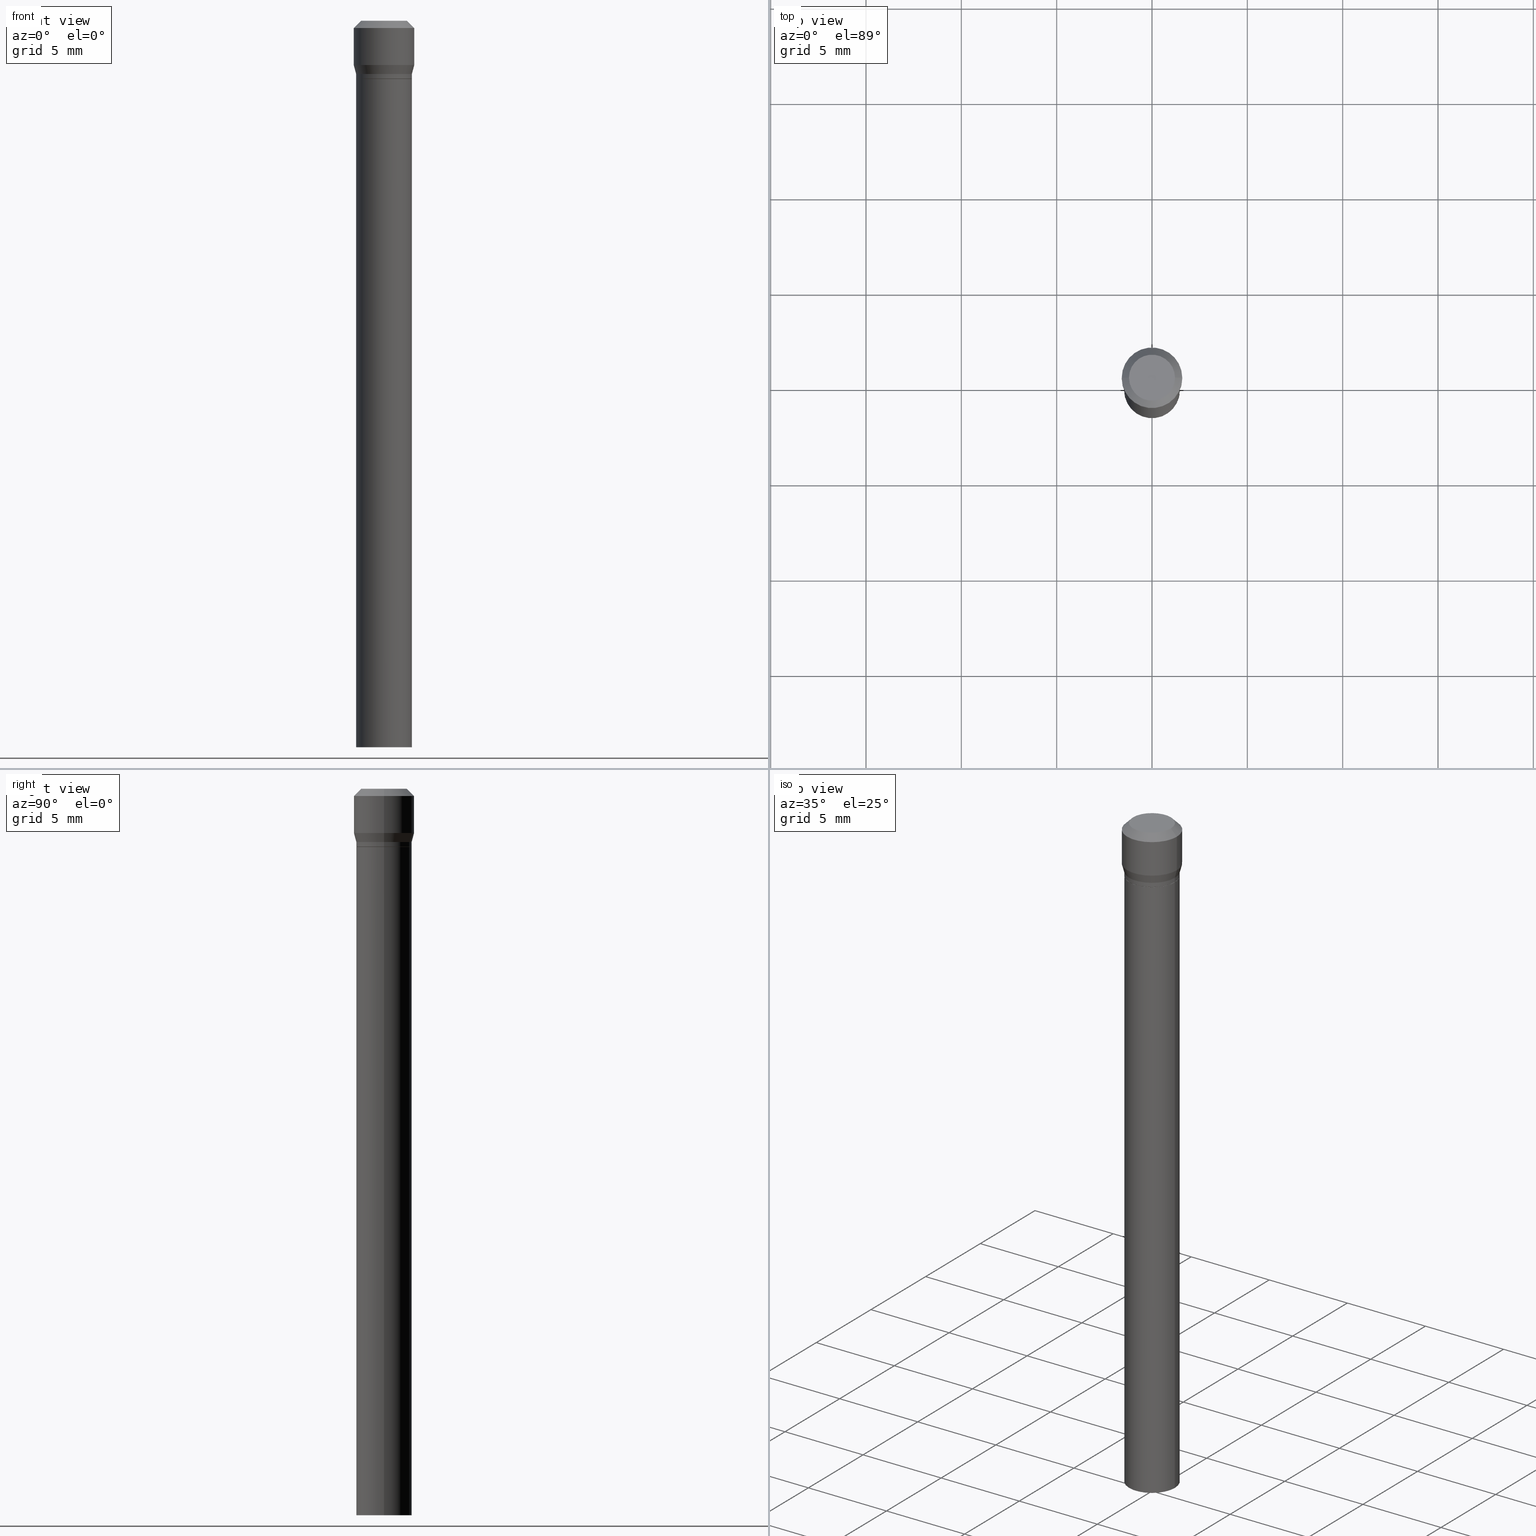
[diagram: canonical four-view strip — front | top / right | iso, engineering-drawing reading convention]
A machine part, canonical four-view strip (front | top / right | iso — engineering-drawing reading convention). The complete STEP part file that produces these views, byte-faithful:
ISO-10303-21;
HEADER;
FILE_DESCRIPTION (( 'STEP AP203' ),
    '1' );
FILE_NAME ('04264.STEP',
    '2024-03-14T17:35:19',
    ( '' ),
    ( '' ),
    'SwSTEP 2.0',
    'SolidWorks 2023',
    '' );
FILE_SCHEMA (( 'CONFIG_CONTROL_DESIGN' ));
ENDSEC;

DATA;
#1 = ORIENTED_EDGE ( 'NONE', *, *, #291, .T. ) ;
#2 = CARTESIAN_POINT ( 'NONE',  ( 0.05750000000000000250, -4.015203539669603161E-16, 2.803801646082662941E-30 ) ) ;
#3 = ADVANCED_FACE ( 'NONE', ( #105 ), #68, .T. ) ;
#4 = VECTOR ( 'NONE', #30, 39.37007874015748143 ) ;
#5 = AXIS2_PLACEMENT_3D ( 'NONE', #64, #353, #167 ) ;
#6 = VERTEX_POINT ( 'NONE', #465 ) ;
#7 = PRODUCT_DEFINITION_SHAPE ( 'NONE', 'NONE',  #31 ) ;
#8 = PERSON_AND_ORGANIZATION_ROLE ( 'creator' ) ;
#9 = DIRECTION ( 'NONE',  ( 1.000000000000000000, 0.000000000000000000, 0.000000000000000000 ) ) ;
#10 = AXIS2_PLACEMENT_3D ( 'NONE', #143, #271, #232 ) ;
#11 = APPROVAL_STATUS ( 'not_yet_approved' ) ;
#12 = PRODUCT_RELATED_PRODUCT_CATEGORY ( 'detail', '', ( #455 ) ) ;
#13 = EDGE_CURVE ( 'NONE', #24, #309, #240, .T. ) ;
#14 = DIRECTION ( 'NONE',  ( -2.445468806185136597E-29, 3.491481338843145583E-15, 1.000000000000000000 ) ) ;
#15 = LINE ( 'NONE', #25, #371 ) ;
#16 = PERSON_AND_ORGANIZATION ( #151, #415 ) ;
#17 = CARTESIAN_POINT ( 'NONE',  ( 2.934562567422172828E-30, -4.189777606611787045E-16, -0.1200000000000003564 ) ) ;
#18 = CARTESIAN_POINT ( 'NONE',  ( 2.690015686803654923E-30, -3.840629472727466610E-16, -0.1100000000000001948 ) ) ;
#19 = ORIENTED_EDGE ( 'NONE', *, *, #424, .F. ) ;
#20 = AXIS2_PLACEMENT_3D ( 'NONE', #18, #155, #158 ) ;
#21 = APPROVAL_PERSON_ORGANIZATION ( #431, #44, #245 ) ;
#22 = FACE_OUTER_BOUND ( 'NONE', #393, .T. ) ;
#23 = FACE_OUTER_BOUND ( 'NONE', #109, .T. ) ;
#24 = VERTEX_POINT ( 'NONE', #460 ) ;
#25 = CARTESIAN_POINT ( 'NONE',  ( -0.05750000000000000250, 4.085620730620576246E-16, -2.828387676896570712E-30 ) ) ;
#26 = EDGE_CURVE ( 'NONE', #132, #60, #256, .T. ) ;
#27 = DIRECTION ( 'NONE',  ( -2.445468806185136597E-29, 3.491481338843145583E-15, 1.000000000000000000 ) ) ;
#28 = CARTESIAN_POINT ( 'NONE',  ( 2.690015686803654923E-30, -3.840629472727466610E-16, -0.1100000000000001948 ) ) ;
#29 = CARTESIAN_POINT ( 'NONE',  ( 0.06250000000000000000, -4.364351673553916694E-16, 3.047610484872459871E-30 ) ) ;
#30 = DIRECTION ( 'NONE',  ( -2.445468806185136877E-29, 3.491481338843145188E-15, 1.000000000000000000 ) ) ;
#31 = PRODUCT_DEFINITION ( 'UNKNOWN', '', #322, #314 ) ;
#32 = ORIENTED_EDGE ( 'NONE', *, *, #219, .T. ) ;
#33 = CC_DESIGN_PERSON_AND_ORGANIZATION_ASSIGNMENT ( #250, #400, ( #322 ) ) ;
#34 = VERTEX_POINT ( 'NONE', #242 ) ;
#35 = AXIS2_PLACEMENT_3D ( 'NONE', #193, #224, #453 ) ;
#36 = CC_DESIGN_SECURITY_CLASSIFICATION ( #438, ( #322 ) ) ;
#37 = DIRECTION ( 'NONE',  ( -0.7071067811865522357, 2.468850131082306364E-15, -0.7071067811865427988 ) ) ;
#38 = DIRECTION ( 'NONE',  ( 1.000000000000000000, -6.982962677686265922E-15, 0.000000000000000000 ) ) ;
#39 = VERTEX_POINT ( 'NONE', #275 ) ;
#40 = DIRECTION ( 'NONE',  ( -2.445468806185136877E-29, 3.491481338843145188E-15, 1.000000000000000000 ) ) ;
#41 = LINE ( 'NONE', #301, #327 ) ;
#42 = CARTESIAN_POINT ( 'NONE',  ( 3.668203209277705088E-31, -5.237222008264718399E-17, -0.01499999999999999944 ) ) ;
#43 = MECHANICAL_CONTEXT ( 'NONE', #403, 'mechanical' ) ;
#44 = APPROVAL ( #282, 'UNSPECIFIED' ) ;
#45 = AXIS2_PLACEMENT_3D ( 'NONE', #221, #441, #119 ) ;
#46 = APPROVAL_ROLE ( '' ) ;
#47 = CIRCLE ( 'NONE', #278, 0.05750000000000000250 ) ;
#48 = EDGE_CURVE ( 'NONE', #60, #132, #364, .T. ) ;
#49 = AXIS2_PLACEMENT_3D ( 'NONE', #175, #71, #138 ) ;
#50 = ORIENTED_EDGE ( 'NONE', *, *, #433, .F. ) ;
#51 = CIRCLE ( 'NONE', #49, 0.04749999999999999362 ) ;
#52 = CARTESIAN_POINT ( 'NONE',  ( 3.668203209277704895E-29, -5.237222008264718177E-15, -1.500000000000000222 ) ) ;
#53 = LOCAL_TIME ( 13, 35, 19.00000000000000000, #356 ) ;
#54 = CARTESIAN_POINT ( 'NONE',  ( 3.668203209277704895E-29, -5.237222008264718177E-15, -1.500000000000000222 ) ) ;
#55 = ORIENTED_EDGE ( 'NONE', *, *, #128, .F. ) ;
#56 = FACE_OUTER_BOUND ( 'NONE', #370, .T. ) ;
#57 = ORIENTED_EDGE ( 'NONE', *, *, #172, .T. ) ;
#58 = EDGE_CURVE ( 'NONE', #39, #6, #350, .T. ) ;
#59 = AXIS2_PLACEMENT_3D ( 'NONE', #409, #463, #452 ) ;
#60 = VERTEX_POINT ( 'NONE', #236 ) ;
#61 = DIRECTION ( 'NONE',  ( 0.7071067811865656694, -2.468850131082446387E-15, 0.7071067811865294761 ) ) ;
#62 = ADVANCED_FACE ( 'NONE', ( #387 ), #163, .T. ) ;
#63 = FACE_OUTER_BOUND ( 'NONE', #195, .T. ) ;
#64 = CARTESIAN_POINT ( 'NONE',  ( 0.000000000000000000, 0.000000000000000000, 0.000000000000000000 ) ) ;
#65 = CARTESIAN_POINT ( 'NONE',  ( 2.690015686803654923E-30, -3.840629472727466610E-16, -0.1100000000000001948 ) ) ;
#66 = DIRECTION ( 'NONE',  ( 1.000000000000000000, -6.982962677686265922E-15, 0.000000000000000000 ) ) ;
#67 = DIRECTION ( 'NONE',  ( 1.000000000000000000, -6.982962677686266711E-15, 0.000000000000000000 ) ) ;
#68 = CONICAL_SURFACE ( 'NONE', #197, 0.06250000000000000000, 0.7853981633974549403 ) ;
#69 = EDGE_LOOP ( 'NONE', ( #292, #341 ) ) ;
#70 = CIRCLE ( 'NONE', #118, 0.05750000000000001638 ) ;
#71 = DIRECTION ( 'NONE',  ( -2.445468806185136597E-29, 3.491481338843145583E-15, 1.000000000000000000 ) ) ;
#72 = ORIENTED_EDGE ( 'NONE', *, *, #186, .F. ) ;
#73 = EDGE_CURVE ( 'NONE', #39, #456, #51, .T. ) ;
#74 = EDGE_LOOP ( 'NONE', ( #274, #407, #277, #401 ) ) ;
#75 = AXIS2_PLACEMENT_3D ( 'NONE', #416, #311, #389 ) ;
#76 = AXIS2_PLACEMENT_3D ( 'NONE', #179, #281, #9 ) ;
#77 = APPROVAL_DATE_TIME ( #362, #44 ) ;
#78 = ADVANCED_FACE ( 'NONE', ( #63 ), #344, .T. ) ;
#79 = CLOSED_SHELL ( 'NONE', ( #418, #162, #96, #429 ) ) ;
#80 =( GEOMETRIC_REPRESENTATION_CONTEXT ( 3 ) GLOBAL_UNCERTAINTY_ASSIGNED_CONTEXT ( ( #323 ) ) GLOBAL_UNIT_ASSIGNED_CONTEXT ( ( #265, #300, #412 ) ) REPRESENTATION_CONTEXT ( 'NONE', 'WORKASPACE' ) );
#81 = SECURITY_CLASSIFICATION_LEVEL ( 'unclassified' ) ;
#82 = VERTEX_POINT ( 'NONE', #180 ) ;
#83 = DIRECTION ( 'NONE',  ( 1.000000000000000000, -6.982962677686265922E-15, 0.000000000000000000 ) ) ;
#84 = ORIENTED_EDGE ( 'NONE', *, *, #26, .F. ) ;
#85 = DIRECTION ( 'NONE',  ( -2.438088387897960049E-29, 3.491481338843145188E-15, 1.000000000000000000 ) ) ;
#86 = DIRECTION ( 'NONE',  ( 1.000000000000000000, -6.982962677686265922E-15, 0.000000000000000000 ) ) ;
#87 = VECTOR ( 'NONE', #258, 39.37007874015748143 ) ;
#88 = LOCAL_TIME ( 13, 35, 19.00000000000000000, #212 ) ;
#89 = DIRECTION ( 'NONE',  ( -2.445468806185136597E-29, 3.491481338843145583E-15, 1.000000000000000000 ) ) ;
#90 = LINE ( 'NONE', #196, #220 ) ;
#91 = DIRECTION ( 'NONE',  ( 2.445468806185136597E-29, -3.491481338843145583E-15, -1.000000000000000000 ) ) ;
#92 = APPROVAL ( #11, 'UNSPECIFIED' ) ;
#93 = EDGE_LOOP ( 'NONE', ( #199, #461, #462, #19 ) ) ;
#94 = DIRECTION ( 'NONE',  ( 2.438088387897960049E-29, -3.491481338843145188E-15, -1.000000000000000000 ) ) ;
#95 = DIRECTION ( 'NONE',  ( -1.000000000000000000, 6.982962677686266711E-15, 0.000000000000000000 ) ) ;
#96 = ADVANCED_FACE ( 'NONE', ( #376 ), #135, .T. ) ;
#97 = DIRECTION ( 'NONE',  ( 1.000000000000000000, -6.982962677686266711E-15, 4.876176775795935793E-29 ) ) ;
#98 = FACE_OUTER_BOUND ( 'NONE', #251, .T. ) ;
#99 = EDGE_CURVE ( 'NONE', #456, #34, #41, .T. ) ;
#100 = AXIS2_PLACEMENT_3D ( 'NONE', #106, #384, #204 ) ;
#101 = VERTEX_POINT ( 'NONE', #304 ) ;
#102 = EDGE_LOOP ( 'NONE', ( #57, #222, #50, #72 ) ) ;
#103 = DIRECTION ( 'NONE',  ( -2.445468806185136877E-29, 3.491481338843145188E-15, 1.000000000000000000 ) ) ;
#104 = ORIENTED_EDGE ( 'NONE', *, *, #13, .F. ) ;
#105 = FACE_OUTER_BOUND ( 'NONE', #74, .T. ) ;
#106 = CARTESIAN_POINT ( 'NONE',  ( 4.015203539669632251E-16, 0.05749999999999958616, -0.1200000000000005645 ) ) ;
#107 = ORIENTED_EDGE ( 'NONE', *, *, #329, .T. ) ;
#108 = LINE ( 'NONE', #2, #321 ) ;
#109 = EDGE_LOOP ( 'NONE', ( #442, #231 ) ) ;
#110 = AXIS2_PLACEMENT_3D ( 'NONE', #253, #445, #123 ) ;
#111 = DIRECTION ( 'NONE',  ( 1.000000000000000000, -6.982962677686265922E-15, 0.000000000000000000 ) ) ;
#112 = ORIENTED_EDGE ( 'NONE', *, *, #443, .F. ) ;
#113 = DIRECTION ( 'NONE',  ( -0.2588190451025213501, 5.211531920934551042E-15, 0.9659258262890682012 ) ) ;
#114 = AXIS2_PLACEMENT_3D ( 'NONE', #208, #14, #111 ) ;
#115 = AXIS2_PLACEMENT_3D ( 'NONE', #269, #296, #67 ) ;
#116 = CALENDAR_DATE ( 2024, 14, 3 ) ;
#117 = AXIS2_PLACEMENT_3D ( 'NONE', #342, #354, #308 ) ;
#118 = AXIS2_PLACEMENT_3D ( 'NONE', #202, #374, #38 ) ;
#119 = DIRECTION ( 'NONE',  ( 1.000000000000000000, -6.982962677686267499E-15, 4.852736867747366768E-29 ) ) ;
#120 = EDGE_CURVE ( 'NONE', #309, #206, #294, .T. ) ;
#121 = DIRECTION ( 'NONE',  ( -2.445468806185136597E-29, 3.491481338843145583E-15, 1.000000000000000000 ) ) ;
#122 = CARTESIAN_POINT ( 'NONE',  ( -0.05750000000000000250, -2.419537811400891013E-15, -1.500000000000000222 ) ) ;
#123 = DIRECTION ( 'NONE',  ( 1.000000000000000000, -6.982962677686266711E-15, 4.876176775795935793E-29 ) ) ;
#124 = DIRECTION ( 'NONE',  ( -2.438088387897960049E-29, 3.491481338843145188E-15, 1.000000000000000000 ) ) ;
#125 = AXIS2_PLACEMENT_3D ( 'NONE', #54, #295, #408 ) ;
#126 = LOCAL_TIME ( 13, 35, 19.00000000000000000, #394 ) ;
#127 = ORIENTED_EDGE ( 'NONE', *, *, #247, .T. ) ;
#128 = EDGE_CURVE ( 'NONE', #101, #132, #108, .T. ) ;
#129 = CYLINDRICAL_SURFACE ( 'NONE', #5, 0.05750000000000000250 ) ;
#130 = EDGE_CURVE ( 'NONE', #309, #6, #420, .T. ) ;
#131 = CARTESIAN_POINT ( 'NONE',  ( 0.000000000000000000, 0.000000000000000000, 0.000000000000000000 ) ) ;
#132 = VERTEX_POINT ( 'NONE', #380 ) ;
#133 = DIRECTION ( 'NONE',  ( -2.445468806185136877E-29, 3.491481338843145188E-15, 1.000000000000000000 ) ) ;
#134 = CIRCLE ( 'NONE', #115, 0.06250000000000000000 ) ;
#135 = CYLINDRICAL_SURFACE ( 'NONE', #117, 0.05750000000000000250 ) ;
#136 = ORIENTED_EDGE ( 'NONE', *, *, #443, .T. ) ;
#137 = ORIENTED_EDGE ( 'NONE', *, *, #99, .F. ) ;
#138 = DIRECTION ( 'NONE',  ( 1.000000000000000000, -6.982962677686267499E-15, 4.852736867747366768E-29 ) ) ;
#139 = ORIENTED_EDGE ( 'NONE', *, *, #381, .T. ) ;
#140 = DIRECTION ( 'NONE',  ( -2.445468806185136597E-29, 3.491481338843145583E-15, 1.000000000000000000 ) ) ;
#141 = DIRECTION ( 'NONE',  ( 1.000000000000000000, -6.982962677686265922E-15, 4.876176775795935793E-29 ) ) ;
#142 = CONICAL_SURFACE ( 'NONE', #458, 0.05700000000000000205, 0.7853981633974739252 ) ;
#143 = CARTESIAN_POINT ( 'NONE',  ( 2.233684995153270850E-30, -3.189110185215410040E-16, -0.09133974596215592434 ) ) ;
#144 = ADVANCED_FACE ( 'NONE', ( #207 ), #366, .T. ) ;
#145 = MANIFOLD_SOLID_BREP ( 'Body-Move/Copy2[2]', #170 ) ;
#146 = ORIENTED_EDGE ( 'NONE', *, *, #128, .T. ) ;
#147 = CALENDAR_DATE ( 2024, 14, 3 ) ;
#148 = COORDINATED_UNIVERSAL_TIME_OFFSET ( 5, 0, .BEHIND. ) ;
#149 = DATE_AND_TIME ( #215, #88 ) ;
#150 = CIRCLE ( 'NONE', #35, 0.05700000000000000205 ) ;
#151 = PERSON ( 'UNSPECIFIED', 'UNSPECIFIED', 'UNSPECIFIED', ('UNSPECIFIED'), ('UNSPECIFIED'), ('UNSPECIFIED') ) ;
#152 = APPROVAL_DATE_TIME ( #217, #92 ) ;
#153 = CC_DESIGN_DATE_AND_TIME_ASSIGNMENT ( #466, #283, ( #31 ) ) ;
#154 = PERSON_AND_ORGANIZATION_ROLE ( 'design_owner' ) ;
#155 = DIRECTION ( 'NONE',  ( -2.445468806185136597E-29, 3.491481338843145583E-15, 1.000000000000000000 ) ) ;
#156 = VECTOR ( 'NONE', #103, 39.37007874015748143 ) ;
#157 = VERTEX_POINT ( 'NONE', #359 ) ;
#158 = DIRECTION ( 'NONE',  ( 1.000000000000000000, -6.982962677686265922E-15, 0.000000000000000000 ) ) ;
#159 = PLANE ( 'NONE',  #267 ) ;
#160 = DIRECTION ( 'NONE',  ( 0.2588190451025213501, 1.565188264969621968E-15, 0.9659258262890682012 ) ) ;
#161 = DIRECTION ( 'NONE',  ( 1.000000000000000000, -6.982962677686265922E-15, 0.000000000000000000 ) ) ;
#162 = ADVANCED_FACE ( 'NONE', ( #339 ), #297, .F. ) ;
#163 = CONICAL_SURFACE ( 'NONE', #114, 0.05700000000000000205, 0.7853981633974739252 ) ;
#164 = ORIENTED_EDGE ( 'NONE', *, *, #58, .T. ) ;
#165 = LENGTH_MEASURE_WITH_UNIT ( LENGTH_MEASURE( 0.02539999999999999897 ), #388 );
#166 = ORIENTED_EDGE ( 'NONE', *, *, #348, .F. ) ;
#167 = DIRECTION ( 'NONE',  ( 1.000000000000000000, -6.982962677686265922E-15, 4.876176775795935232E-29 ) ) ;
#168 = ORIENTED_EDGE ( 'NONE', *, *, #26, .T. ) ;
#169 = DIRECTION ( 'NONE',  ( 0.7071067811865522357, -7.319954787623271823E-15, -0.7071067811865427988 ) ) ;
#170 = CLOSED_SHELL ( 'NONE', ( #78, #337, #3, #450, #324, #144, #255, #244, #358, #184, #62, #436 ) ) ;
#171 = VERTEX_POINT ( 'NONE', #325 ) ;
#172 = EDGE_CURVE ( 'NONE', #157, #24, #226, .T. ) ;
#173 = AXIS2_PLACEMENT_3D ( 'NONE', #459, #239, #141 ) ;
#174 = VERTEX_POINT ( 'NONE', #122 ) ;
#175 = CARTESIAN_POINT ( 'NONE',  ( 4.865611903635008365E-45, -6.946804277620623666E-31, -1.989643822619527736E-16 ) ) ;
#176 = ORIENTED_EDGE ( 'NONE', *, *, #182, .T. ) ;
#177 = PLANE ( 'NONE',  #100 ) ;
#178 = ORIENTED_EDGE ( 'NONE', *, *, #464, .T. ) ;
#179 = CARTESIAN_POINT ( 'NONE',  ( 0.000000000000000000, 0.000000000000000000, 0.000000000000000000 ) ) ;
#180 = CARTESIAN_POINT ( 'NONE',  ( 0.05750000000000003025, -8.187523739587177143E-16, -0.1195000000000003559 ) ) ;
#181 = ORIENTED_EDGE ( 'NONE', *, *, #381, .F. ) ;
#182 = EDGE_CURVE ( 'NONE', #456, #39, #430, .T. ) ;
#183 = COORDINATED_UNIVERSAL_TIME_OFFSET ( 5, 0, .BEHIND. ) ;
#184 = ADVANCED_FACE ( 'NONE', ( #23 ), #159, .F. ) ;
#185 = PERSON_AND_ORGANIZATION_ROLE ( 'creator' ) ;
#186 = EDGE_CURVE ( 'NONE', #157, #206, #90, .T. ) ;
#187 = AXIS2_PLACEMENT_3D ( 'NONE', #378, #383, #66 ) ;
#188 = EDGE_CURVE ( 'NONE', #171, #201, #260, .T. ) ;
#189 = AXIS2_PLACEMENT_3D ( 'NONE', #298, #91, #95 ) ;
#190 = VECTOR ( 'NONE', #40, 39.37007874015748143 ) ;
#191 = VERTEX_POINT ( 'NONE', #447 ) ;
#192 = DIRECTION ( 'NONE',  ( -2.445468806185136597E-29, 3.491481338843145583E-15, 1.000000000000000000 ) ) ;
#193 = CARTESIAN_POINT ( 'NONE',  ( 2.934562567422172828E-30, -4.189777606611787045E-16, -0.1200000000000003564 ) ) ;
#194 = DIRECTION ( 'NONE',  ( -1.000000000000000000, 6.982962677686265922E-15, -4.876176775795935793E-29 ) ) ;
#195 = EDGE_LOOP ( 'NONE', ( #178, #210, #343, #181 ) ) ;
#196 = CARTESIAN_POINT ( 'NONE',  ( 0.05750000000000001638, -7.855833012397070757E-16, -0.1100000000000001948 ) ) ;
#197 = AXIS2_PLACEMENT_3D ( 'NONE', #42, #233, #315 ) ;
#198 = CARTESIAN_POINT ( 'NONE',  ( 0.05700000000000000205, -8.170066332892958163E-16, -0.1200000000000003564 ) ) ;
#199 = ORIENTED_EDGE ( 'NONE', *, *, #433, .T. ) ;
#200 = CYLINDRICAL_SURFACE ( 'NONE', #397, 0.06250000000000000000 ) ;
#201 = VERTEX_POINT ( 'NONE', #451 ) ;
#202 = CARTESIAN_POINT ( 'NONE',  ( 2.690015686803654923E-30, -3.840629472727466610E-16, -0.1100000000000001948 ) ) ;
#203 = ORIENTED_EDGE ( 'NONE', *, *, #73, .F. ) ;
#204 = DIRECTION ( 'NONE',  ( -1.000000000000000000, 6.982962677686265922E-15, -4.876176775795935793E-29 ) ) ;
#205 = APPROVAL_PERSON_ORGANIZATION ( #361, #92, #46 ) ;
#206 = VERTEX_POINT ( 'NONE', #367 ) ;
#207 = FACE_OUTER_BOUND ( 'NONE', #302, .T. ) ;
#208 = CARTESIAN_POINT ( 'NONE',  ( 2.934562567422172828E-30, -4.189777606611787045E-16, -0.1200000000000003564 ) ) ;
#209 = DIRECTION ( 'NONE',  ( -2.445468806185136597E-29, 3.491481338843145583E-15, 1.000000000000000000 ) ) ;
#210 = ORIENTED_EDGE ( 'NONE', *, *, #398, .T. ) ;
#211 = PERSON_AND_ORGANIZATION ( #151, #415 ) ;
#212 = COORDINATED_UNIVERSAL_TIME_OFFSET ( 5, 0, .BEHIND. ) ;
#213 = AXIS2_PLACEMENT_3D ( 'NONE', #17, #334, #83 ) ;
#214 = APPROVAL_PERSON_ORGANIZATION ( #211, #318, #360 ) ;
#215 = CALENDAR_DATE ( 2024, 14, 3 ) ;
#216 = PERSON_AND_ORGANIZATION ( #151, #415 ) ;
#217 = DATE_AND_TIME ( #320, #386 ) ;
#218 = AXIS2_PLACEMENT_3D ( 'NONE', #402, #27, #86 ) ;
#219 = EDGE_CURVE ( 'NONE', #174, #101, #285, .T. ) ;
#220 = VECTOR ( 'NONE', #160, 39.37007874015747433 ) ;
#221 = CARTESIAN_POINT ( 'NONE',  ( 4.865611903635008365E-45, -6.946804277620623666E-31, -1.989643822619527736E-16 ) ) ;
#222 = ORIENTED_EDGE ( 'NONE', *, *, #13, .T. ) ;
#223 = ORIENTED_EDGE ( 'NONE', *, *, #48, .T. ) ;
#224 = DIRECTION ( 'NONE',  ( -2.445468806185136597E-29, 3.491481338843145583E-15, 1.000000000000000000 ) ) ;
#225 = CARTESIAN_POINT ( 'NONE',  ( 2.922335223391247266E-30, -4.172320199917571516E-16, -0.1195000000000003559 ) ) ;
#226 = CIRCLE ( 'NONE', #20, 0.05750000000000001638 ) ;
#227 = FACE_OUTER_BOUND ( 'NONE', #428, .T. ) ;
#228 = ORIENTED_EDGE ( 'NONE', *, *, #317, .T. ) ;
#229 = EDGE_LOOP ( 'NONE', ( #369, #261, #139, #112 ) ) ;
#230 = CARTESIAN_POINT ( 'NONE',  ( 0.04749999999999999362, -4.035134999187581581E-16, -1.989643822619502098E-16 ) ) ;
#231 = ORIENTED_EDGE ( 'NONE', *, *, #247, .F. ) ;
#232 = DIRECTION ( 'NONE',  ( 1.000000000000000000, -6.982962677686266711E-15, 0.000000000000000000 ) ) ;
#233 = DIRECTION ( 'NONE',  ( 2.445468806185136597E-29, -3.491481338843145583E-15, -1.000000000000000000 ) ) ;
#234 = LINE ( 'NONE', #29, #190 ) ;
#235 = DIRECTION ( 'NONE',  ( -2.445468806185136877E-29, 3.491481338843145188E-15, 1.000000000000000000 ) ) ;
#236 = CARTESIAN_POINT ( 'NONE',  ( -0.05750000000000000250, -2.419537811400891013E-15, -0.1200000000000003564 ) ) ;
#237 = FACE_OUTER_BOUND ( 'NONE', #93, .T. ) ;
#238 = CONICAL_SURFACE ( 'NONE', #404, 0.05750000000000001638, 0.2617993877991500740 ) ;
#239 = DIRECTION ( 'NONE',  ( -2.445468806185136597E-29, 3.491481338843145583E-15, 1.000000000000000000 ) ) ;
#240 = LINE ( 'NONE', #307, #437 ) ;
#241 = APPROVAL_DATE_TIME ( #439, #318 ) ;
#242 = CARTESIAN_POINT ( 'NONE',  ( 0.06250000000000000000, -4.888073874380388472E-16, -0.01499999999999999944 ) ) ;
#243 = VECTOR ( 'NONE', #37, 39.37007874015748143 ) ;
#244 = ADVANCED_FACE ( 'NONE', ( #405 ), #385, .T. ) ;
#245 = APPROVAL_ROLE ( '' ) ;
#246 = CC_DESIGN_DATE_AND_TIME_ASSIGNMENT ( #149, #432, ( #438 ) ) ;
#247 = EDGE_CURVE ( 'NONE', #171, #191, #150, .T. ) ;
#248 = AXIS2_PLACEMENT_3D ( 'NONE', #259, #368, #293 ) ;
#249 = ORIENTED_EDGE ( 'NONE', *, *, #130, .F. ) ;
#250 = PERSON_AND_ORGANIZATION ( #151, #415 ) ;
#251 = EDGE_LOOP ( 'NONE', ( #107, #228, #84, #55 ) ) ;
#252 = DIRECTION ( 'NONE',  ( 1.000000000000000000, -6.982962677686265922E-15, 0.000000000000000000 ) ) ;
#253 = CARTESIAN_POINT ( 'NONE',  ( 0.000000000000000000, 0.000000000000000000, 0.000000000000000000 ) ) ;
#254 = CARTESIAN_POINT ( 'NONE',  ( 2.934562567422172828E-30, -4.189777606611787045E-16, -0.1200000000000003564 ) ) ;
#255 = ADVANCED_FACE ( 'NONE', ( #289 ), #335, .T. ) ;
#256 = CIRCLE ( 'NONE', #75, 0.05750000000000000250 ) ;
#257 = DIRECTION ( 'NONE',  ( 1.000000000000000000, -6.982962677686265922E-15, 4.876176775795935793E-29 ) ) ;
#258 = DIRECTION ( 'NONE',  ( -0.7071067811865656694, 7.493145998870420424E-15, 0.7071067811865294761 ) ) ;
#259 = CARTESIAN_POINT ( 'NONE',  ( 3.668203209277705088E-31, -5.237222008264718399E-17, -0.01499999999999999944 ) ) ;
#260 = LINE ( 'NONE', #340, #87 ) ;
#261 = ORIENTED_EDGE ( 'NONE', *, *, #264, .T. ) ;
#262 = DIRECTION ( 'NONE',  ( 1.000000000000000000, -6.982962677686265922E-15, 4.876176775795935793E-29 ) ) ;
#263 = ORIENTED_EDGE ( 'NONE', *, *, #188, .T. ) ;
#264 = EDGE_CURVE ( 'NONE', #201, #82, #449, .T. ) ;
#265 =( CONVERSION_BASED_UNIT ( 'INCH', #165 ) LENGTH_UNIT ( ) NAMED_UNIT ( #332 ) );
#266 = APPLICATION_CONTEXT ( 'configuration controlled 3d designs of mechanical parts and assemblies' ) ;
#267 = AXIS2_PLACEMENT_3D ( 'NONE', #446, #124, #257 ) ;
#268 = CC_DESIGN_APPROVAL ( #44, ( #322 ) ) ;
#269 = CARTESIAN_POINT ( 'NONE',  ( 2.233684995153270850E-30, -3.189110185215410040E-16, -0.09133974596215592434 ) ) ;
#270 = CC_DESIGN_PERSON_AND_ORGANIZATION_ASSIGNMENT ( #319, #8, ( #31 ) ) ;
#271 = DIRECTION ( 'NONE',  ( -2.445468806185136597E-29, 3.491481338843145583E-15, 1.000000000000000000 ) ) ;
#272 = ORIENTED_EDGE ( 'NONE', *, *, #188, .F. ) ;
#273 = APPLICATION_PROTOCOL_DEFINITION ( 'international standard', 'config_control_design', 1994, #403 ) ;
#274 = ORIENTED_EDGE ( 'NONE', *, *, #182, .F. ) ;
#275 = CARTESIAN_POINT ( 'NONE',  ( -0.04749999999999999362, 3.578768372314206562E-16, -1.989643822619551895E-16 ) ) ;
#276 = DIRECTION ( 'NONE',  ( 1.000000000000000000, -6.982962677686265922E-15, 0.000000000000000000 ) ) ;
#277 = ORIENTED_EDGE ( 'NONE', *, *, #395, .T. ) ;
#278 = AXIS2_PLACEMENT_3D ( 'NONE', #52, #192, #330 ) ;
#279 = DIRECTION ( 'NONE',  ( -2.445468806185136597E-29, 3.491481338843145583E-15, 1.000000000000000000 ) ) ;
#280 = EDGE_LOOP ( 'NONE', ( #137, #203, #164, #287 ) ) ;
#281 = DIRECTION ( 'NONE',  ( 0.000000000000000000, 0.000000000000000000, 1.000000000000000000 ) ) ;
#282 = APPROVAL_STATUS ( 'not_yet_approved' ) ;
#283 = DATE_TIME_ROLE ( 'creation_date' ) ;
#284 = AXIS2_PLACEMENT_3D ( 'NONE', #410, #85, #372 ) ;
#285 = CIRCLE ( 'NONE', #125, 0.05750000000000000250 ) ;
#286 = CIRCLE ( 'NONE', #328, 0.05750000000000003025 ) ;
#287 = ORIENTED_EDGE ( 'NONE', *, *, #348, .T. ) ;
#288 = FACE_OUTER_BOUND ( 'NONE', #102, .T. ) ;
#289 = FACE_OUTER_BOUND ( 'NONE', #422, .T. ) ;
#290 = ORIENTED_EDGE ( 'NONE', *, *, #399, .T. ) ;
#291 = EDGE_CURVE ( 'NONE', #191, #171, #347, .T. ) ;
#292 = ORIENTED_EDGE ( 'NONE', *, *, #329, .F. ) ;
#293 = DIRECTION ( 'NONE',  ( 1.000000000000000000, -6.982962677686266711E-15, 0.000000000000000000 ) ) ;
#294 = CIRCLE ( 'NONE', #10, 0.06250000000000000000 ) ;
#295 = DIRECTION ( 'NONE',  ( -2.445468806185136597E-29, 3.491481338843145583E-15, 1.000000000000000000 ) ) ;
#296 = DIRECTION ( 'NONE',  ( -2.445468806185136597E-29, 3.491481338843145583E-15, 1.000000000000000000 ) ) ;
#297 = PLANE ( 'NONE',  #284 ) ;
#298 = CARTESIAN_POINT ( 'NONE',  ( 3.668203209277705088E-31, -5.237222008264718399E-17, -0.01499999999999999944 ) ) ;
#299 = ORIENTED_EDGE ( 'NONE', *, *, #186, .T. ) ;
#300 =( NAMED_UNIT ( * ) PLANE_ANGLE_UNIT ( ) SI_UNIT ( $, .RADIAN. ) );
#301 = CARTESIAN_POINT ( 'NONE',  ( 0.06250000000000000000, -4.811533449433679005E-16, -0.01499999999999999944 ) ) ;
#302 = EDGE_LOOP ( 'NONE', ( #104, #136, #299, #419 ) ) ;
#303 = DIRECTION ( 'NONE',  ( -2.445468806185136597E-29, 3.491481338843145583E-15, 1.000000000000000000 ) ) ;
#304 = CARTESIAN_POINT ( 'NONE',  ( 0.05750000000000000250, -5.638742362231678986E-15, -1.500000000000000222 ) ) ;
#305 = AXIS2_PLACEMENT_3D ( 'NONE', #406, #94, #194 ) ;
#306 = AXIS2_PLACEMENT_3D ( 'NONE', #457, #209, #262 ) ;
#307 = CARTESIAN_POINT ( 'NONE',  ( -0.05750000000000001638, 2.449912578931107152E-17, -0.1100000000000001948 ) ) ;
#308 = DIRECTION ( 'NONE',  ( 1.000000000000000000, -6.982962677686265922E-15, 4.876176775795935232E-29 ) ) ;
#309 = VERTEX_POINT ( 'NONE', #365 ) ;
#310 = LINE ( 'NONE', #198, #414 ) ;
#311 = DIRECTION ( 'NONE',  ( -2.445468806185136597E-29, 3.491481338843145583E-15, 1.000000000000000000 ) ) ;
#312 = PERSON_AND_ORGANIZATION ( #151, #415 ) ;
#313 = PERSON_AND_ORGANIZATION_ROLE ( 'classification_officer' ) ;
#314 = DESIGN_CONTEXT ( 'detailed design', #266, 'design' ) ;
#315 = DIRECTION ( 'NONE',  ( -1.000000000000000000, 6.982962677686266711E-15, 0.000000000000000000 ) ) ;
#316 = CALENDAR_DATE ( 2024, 14, 3 ) ;
#317 = EDGE_CURVE ( 'NONE', #174, #60, #15, .T. ) ;
#318 = APPROVAL ( #390, 'UNSPECIFIED' ) ;
#319 = PERSON_AND_ORGANIZATION ( #151, #415 ) ;
#320 = CALENDAR_DATE ( 2024, 14, 3 ) ;
#321 = VECTOR ( 'NONE', #235, 39.37007874015748143 ) ;
#322 = PRODUCT_DEFINITION_FORMATION_WITH_SPECIFIED_SOURCE ( 'ANY', '', #455, .NOT_KNOWN. ) ;
#323 = UNCERTAINTY_MEASURE_WITH_UNIT (LENGTH_MEASURE( 1.000000000000000082E-05 ), #265, 'distance_accuracy_value', 'NONE');
#324 = ADVANCED_FACE ( 'NONE', ( #288 ), #238, .T. ) ;
#325 = CARTESIAN_POINT ( 'NONE',  ( -0.05700000000000000205, -1.131917410381042142E-17, -0.1200000000000003564 ) ) ;
#326 = DIRECTION ( 'NONE',  ( -2.445468806185136877E-29, 3.491481338843145188E-15, 1.000000000000000000 ) ) ;
#327 = VECTOR ( 'NONE', #169, 39.37007874015748143 ) ;
#328 = AXIS2_PLACEMENT_3D ( 'NONE', #225, #303, #276 ) ;
#329 = EDGE_CURVE ( 'NONE', #101, #174, #47, .T. ) ;
#330 = DIRECTION ( 'NONE',  ( 1.000000000000000000, -6.982962677686273810E-15, 0.000000000000000000 ) ) ;
#331 = ORIENTED_EDGE ( 'NONE', *, *, #399, .F. ) ;
#332 = DIMENSIONAL_EXPONENTS ( 1.000000000000000000, 0.000000000000000000, 0.000000000000000000, 0.000000000000000000, 0.000000000000000000, 0.000000000000000000, 0.000000000000000000 ) ;
#333 = CC_DESIGN_PERSON_AND_ORGANIZATION_ASSIGNMENT ( #312, #313, ( #438 ) ) ;
#334 = DIRECTION ( 'NONE',  ( -2.445468806185136597E-29, 3.491481338843145583E-15, 1.000000000000000000 ) ) ;
#335 = CYLINDRICAL_SURFACE ( 'NONE', #110, 0.06250000000000000000 ) ;
#336 = LINE ( 'NONE', #434, #338 ) ;
#337 = ADVANCED_FACE ( 'NONE', ( #22 ), #142, .T. ) ;
#338 = VECTOR ( 'NONE', #133, 39.37007874015748143 ) ;
#339 = FACE_OUTER_BOUND ( 'NONE', #69, .T. ) ;
#340 = CARTESIAN_POINT ( 'NONE',  ( -0.05700000000000000205, -1.396840127792159010E-17, -0.1200000000000003564 ) ) ;
#341 = ORIENTED_EDGE ( 'NONE', *, *, #219, .F. ) ;
#342 = CARTESIAN_POINT ( 'NONE',  ( 0.000000000000000000, 0.000000000000000000, 0.000000000000000000 ) ) ;
#343 = ORIENTED_EDGE ( 'NONE', *, *, #172, .F. ) ;
#344 = CYLINDRICAL_SURFACE ( 'NONE', #173, 0.05750000000000001638 ) ;
#345 = ORIENTED_EDGE ( 'NONE', *, *, #424, .T. ) ;
#346 = ORIENTED_EDGE ( 'NONE', *, *, #317, .F. ) ;
#347 = CIRCLE ( 'NONE', #213, 0.05700000000000000205 ) ;
#348 = EDGE_CURVE ( 'NONE', #6, #34, #357, .T. ) ;
#349 = CC_DESIGN_APPROVAL ( #318, ( #31 ) ) ;
#350 = LINE ( 'NONE', #423, #243 ) ;
#351 = CYLINDRICAL_SURFACE ( 'NONE', #306, 0.05750000000000001638 ) ;
#352 = EDGE_LOOP ( 'NONE', ( #346, #32, #146, #413 ) ) ;
#353 = DIRECTION ( 'NONE',  ( -2.445468806185136597E-29, 3.491481338843145583E-15, 1.000000000000000000 ) ) ;
#354 = DIRECTION ( 'NONE',  ( -2.445468806185136597E-29, 3.491481338843145583E-15, 1.000000000000000000 ) ) ;
#355 = EDGE_LOOP ( 'NONE', ( #272, #127, #290, #379 ) ) ;
#356 = COORDINATED_UNIVERSAL_TIME_OFFSET ( 5, 0, .BEHIND. ) ;
#357 = CIRCLE ( 'NONE', #248, 0.06250000000000000000 ) ;
#358 = ADVANCED_FACE ( 'NONE', ( #56 ), #448, .F. ) ;
#359 = CARTESIAN_POINT ( 'NONE',  ( 0.05750000000000001638, -7.855833012397070757E-16, -0.1100000000000001948 ) ) ;
#360 = APPROVAL_ROLE ( '' ) ;
#361 = PERSON_AND_ORGANIZATION ( #151, #415 ) ;
#362 = DATE_AND_TIME ( #316, #126 ) ;
#363 = CC_DESIGN_PERSON_AND_ORGANIZATION_ASSIGNMENT ( #16, #154, ( #455 ) ) ;
#364 = CIRCLE ( 'NONE', #187, 0.05750000000000000250 ) ;
#365 = CARTESIAN_POINT ( 'NONE',  ( -0.06250000000000000000, 1.251781913285216615E-16, -0.09133974596215592434 ) ) ;
#366 = CONICAL_SURFACE ( 'NONE', #425, 0.05750000000000001638, 0.2617993877991500740 ) ;
#367 = CARTESIAN_POINT ( 'NONE',  ( 0.06250000000000000000, -7.553461858769327227E-16, -0.09133974596215592434 ) ) ;
#368 = DIRECTION ( 'NONE',  ( -2.445468806185136597E-29, 3.491481338843145583E-15, 1.000000000000000000 ) ) ;
#369 = ORIENTED_EDGE ( 'NONE', *, *, #398, .F. ) ;
#370 = EDGE_LOOP ( 'NONE', ( #426, #176 ) ) ;
#371 = VECTOR ( 'NONE', #326, 39.37007874015748143 ) ;
#372 = DIRECTION ( 'NONE',  ( 1.000000000000000000, -6.982962677686265922E-15, 4.876176775795935793E-29 ) ) ;
#373 = CC_DESIGN_APPROVAL ( #92, ( #438 ) ) ;
#374 = DIRECTION ( 'NONE',  ( -2.445468806185136597E-29, 3.491481338843145583E-15, 1.000000000000000000 ) ) ;
#375 = ORIENTED_EDGE ( 'NONE', *, *, #120, .T. ) ;
#376 = FACE_OUTER_BOUND ( 'NONE', #352, .T. ) ;
#377 = DIRECTION ( 'NONE',  ( 1.000000000000000000, -6.982962677686265922E-15, 0.000000000000000000 ) ) ;
#378 = CARTESIAN_POINT ( 'NONE',  ( 2.934562567422172828E-30, -4.189777606611787045E-16, -0.1200000000000003564 ) ) ;
#379 = ORIENTED_EDGE ( 'NONE', *, *, #264, .F. ) ;
#380 = CARTESIAN_POINT ( 'NONE',  ( 0.05750000000000000250, -8.204981146281390206E-16, -0.1200000000000003564 ) ) ;
#381 = EDGE_CURVE ( 'NONE', #82, #157, #336, .T. ) ;
#382 = ADVANCED_BREP_SHAPE_REPRESENTATION ( '04264', ( #440, #145, #76 ), #80 ) ;
#383 = DIRECTION ( 'NONE',  ( -2.445468806185136597E-29, 3.491481338843145583E-15, 1.000000000000000000 ) ) ;
#384 = DIRECTION ( 'NONE',  ( 2.438088387897960049E-29, -3.491481338843145188E-15, -1.000000000000000000 ) ) ;
#385 = CONICAL_SURFACE ( 'NONE', #189, 0.06250000000000000000, 0.7853981633974549403 ) ;
#386 = LOCAL_TIME ( 13, 35, 19.00000000000000000, #183 ) ;
#387 = FACE_OUTER_BOUND ( 'NONE', #355, .T. ) ;
#388 =( LENGTH_UNIT ( ) NAMED_UNIT ( * ) SI_UNIT ( $, .METRE. ) );
#389 = DIRECTION ( 'NONE',  ( 1.000000000000000000, -6.982962677686265922E-15, 0.000000000000000000 ) ) ;
#390 = APPROVAL_STATUS ( 'not_yet_approved' ) ;
#391 = APPLICATION_PROTOCOL_DEFINITION ( 'international standard', 'config_control_design', 1994, #266 ) ;
#392 = LOCAL_TIME ( 13, 35, 19.00000000000000000, #148 ) ;
#393 = EDGE_LOOP ( 'NONE', ( #1, #263, #444, #331 ) ) ;
#394 = COORDINATED_UNIVERSAL_TIME_OFFSET ( 5, 0, .BEHIND. ) ;
#395 = EDGE_CURVE ( 'NONE', #34, #6, #396, .T. ) ;
#396 = CIRCLE ( 'NONE', #59, 0.06250000000000000000 ) ;
#397 = AXIS2_PLACEMENT_3D ( 'NONE', #131, #140, #97 ) ;
#398 = EDGE_CURVE ( 'NONE', #201, #24, #454, .T. ) ;
#399 = EDGE_CURVE ( 'NONE', #191, #82, #310, .T. ) ;
#400 = PERSON_AND_ORGANIZATION_ROLE ( 'design_supplier' ) ;
#401 = ORIENTED_EDGE ( 'NONE', *, *, #58, .F. ) ;
#402 = CARTESIAN_POINT ( 'NONE',  ( 2.922335223391247266E-30, -4.172320199917571516E-16, -0.1195000000000003559 ) ) ;
#403 = APPLICATION_CONTEXT ( 'configuration controlled 3d designs of mechanical parts and assemblies' ) ;
#404 = AXIS2_PLACEMENT_3D ( 'NONE', #28, #121, #252 ) ;
#405 = FACE_OUTER_BOUND ( 'NONE', #280, .T. ) ;
#406 = CARTESIAN_POINT ( 'NONE',  ( 3.316907271900976096E-16, 0.04749999999999999362, -2.653275547260257586E-16 ) ) ;
#407 = ORIENTED_EDGE ( 'NONE', *, *, #99, .T. ) ;
#408 = DIRECTION ( 'NONE',  ( 1.000000000000000000, -6.982962677686273810E-15, 0.000000000000000000 ) ) ;
#409 = CARTESIAN_POINT ( 'NONE',  ( 3.668203209277705088E-31, -5.237222008264718399E-17, -0.01499999999999999944 ) ) ;
#410 = CARTESIAN_POINT ( 'NONE',  ( 3.576687321579069994E-29, -5.368277968210015545E-15, -1.500000000000000222 ) ) ;
#411 = CC_DESIGN_PERSON_AND_ORGANIZATION_ASSIGNMENT ( #216, #185, ( #322 ) ) ;
#412 =( NAMED_UNIT ( * ) SI_UNIT ( $, .STERADIAN. ) SOLID_ANGLE_UNIT ( ) );
#413 = ORIENTED_EDGE ( 'NONE', *, *, #48, .F. ) ;
#414 = VECTOR ( 'NONE', #61, 39.37007874015748143 ) ;
#415 = ORGANIZATION ( 'UNSPECIFIED', 'UNSPECIFIED', '' ) ;
#416 = CARTESIAN_POINT ( 'NONE',  ( 2.934562567422172828E-30, -4.189777606611787045E-16, -0.1200000000000003564 ) ) ;
#417 = CARTESIAN_POINT ( 'NONE',  ( -0.05750000000000001638, 4.085620730620577232E-16, -2.828387676896571763E-30 ) ) ;
#418 = ADVANCED_FACE ( 'NONE', ( #98 ), #129, .T. ) ;
#419 = ORIENTED_EDGE ( 'NONE', *, *, #120, .F. ) ;
#420 = LINE ( 'NONE', #427, #4 ) ;
#421 = FACE_OUTER_BOUND ( 'NONE', #229, .T. ) ;
#422 = EDGE_LOOP ( 'NONE', ( #249, #375, #345, #166 ) ) ;
#423 = CARTESIAN_POINT ( 'NONE',  ( -0.06250000000000000000, 3.840629472727444916E-16, -0.01499999999999999944 ) ) ;
#424 = EDGE_CURVE ( 'NONE', #206, #34, #234, .T. ) ;
#425 = AXIS2_PLACEMENT_3D ( 'NONE', #65, #279, #377 ) ;
#426 = ORIENTED_EDGE ( 'NONE', *, *, #73, .T. ) ;
#427 = CARTESIAN_POINT ( 'NONE',  ( -0.06250000000000000000, 4.440892098500626162E-16, -3.074334431409316114E-30 ) ) ;
#428 = EDGE_LOOP ( 'NONE', ( #168, #223 ) ) ;
#429 = ADVANCED_FACE ( 'NONE', ( #227 ), #177, .F. ) ;
#430 = CIRCLE ( 'NONE', #45, 0.04749999999999999362 ) ;
#431 = PERSON_AND_ORGANIZATION ( #151, #415 ) ;
#432 = DATE_TIME_ROLE ( 'classification_date' ) ;
#433 = EDGE_CURVE ( 'NONE', #206, #309, #134, .T. ) ;
#434 = CARTESIAN_POINT ( 'NONE',  ( 0.05750000000000001638, -4.015203539669604147E-16, 2.803801646082663992E-30 ) ) ;
#435 = SHAPE_DEFINITION_REPRESENTATION ( #7, #382 ) ;
#436 = ADVANCED_FACE ( 'NONE', ( #421 ), #351, .T. ) ;
#437 = VECTOR ( 'NONE', #113, 39.37007874015747433 ) ;
#438 = SECURITY_CLASSIFICATION ( '', '', #81 ) ;
#439 = DATE_AND_TIME ( #116, #53 ) ;
#440 = MANIFOLD_SOLID_BREP ( 'Body-Move/Copy2[1]', #79 ) ;
#441 = DIRECTION ( 'NONE',  ( -2.445468806185136597E-29, 3.491481338843145583E-15, 1.000000000000000000 ) ) ;
#442 = ORIENTED_EDGE ( 'NONE', *, *, #291, .F. ) ;
#443 = EDGE_CURVE ( 'NONE', #24, #157, #70, .T. ) ;
#444 = ORIENTED_EDGE ( 'NONE', *, *, #464, .F. ) ;
#445 = DIRECTION ( 'NONE',  ( -2.445468806185136597E-29, 3.491481338843145583E-15, 1.000000000000000000 ) ) ;
#446 = CARTESIAN_POINT ( 'NONE',  ( 2.934562567422172828E-30, -4.189777606611787045E-16, -0.1200000000000003564 ) ) ;
#447 = CARTESIAN_POINT ( 'NONE',  ( 0.05700000000000000205, -8.170066332892958163E-16, -0.1200000000000003564 ) ) ;
#448 = PLANE ( 'NONE',  #305 ) ;
#449 = CIRCLE ( 'NONE', #218, 0.05750000000000003025 ) ;
#450 = ADVANCED_FACE ( 'NONE', ( #237 ), #200, .T. ) ;
#451 = CARTESIAN_POINT ( 'NONE',  ( -0.05750000000000003025, -8.669946929699312821E-18, -0.1195000000000003559 ) ) ;
#452 = DIRECTION ( 'NONE',  ( 1.000000000000000000, -6.982962677686266711E-15, 0.000000000000000000 ) ) ;
#453 = DIRECTION ( 'NONE',  ( 1.000000000000000000, -6.982962677686265922E-15, 0.000000000000000000 ) ) ;
#454 = LINE ( 'NONE', #417, #156 ) ;
#455 = PRODUCT ( '04264', '04264', '', ( #43 ) ) ;
#456 = VERTEX_POINT ( 'NONE', #230 ) ;
#457 = CARTESIAN_POINT ( 'NONE',  ( 0.000000000000000000, 0.000000000000000000, 0.000000000000000000 ) ) ;
#458 = AXIS2_PLACEMENT_3D ( 'NONE', #254, #89, #161 ) ;
#459 = CARTESIAN_POINT ( 'NONE',  ( 0.000000000000000000, 0.000000000000000000, 0.000000000000000000 ) ) ;
#460 = CARTESIAN_POINT ( 'NONE',  ( -0.05750000000000001638, 7.483865855891637421E-17, -0.1100000000000001948 ) ) ;
#461 = ORIENTED_EDGE ( 'NONE', *, *, #130, .T. ) ;
#462 = ORIENTED_EDGE ( 'NONE', *, *, #395, .F. ) ;
#463 = DIRECTION ( 'NONE',  ( -2.445468806185136597E-29, 3.491481338843145583E-15, 1.000000000000000000 ) ) ;
#464 = EDGE_CURVE ( 'NONE', #82, #201, #286, .T. ) ;
#465 = CARTESIAN_POINT ( 'NONE',  ( -0.06250000000000000000, 2.584475905479685006E-16, -0.01499999999999999944 ) ) ;
#466 = DATE_AND_TIME ( #147, #392 ) ;
ENDSEC;
END-ISO-10303-21;
